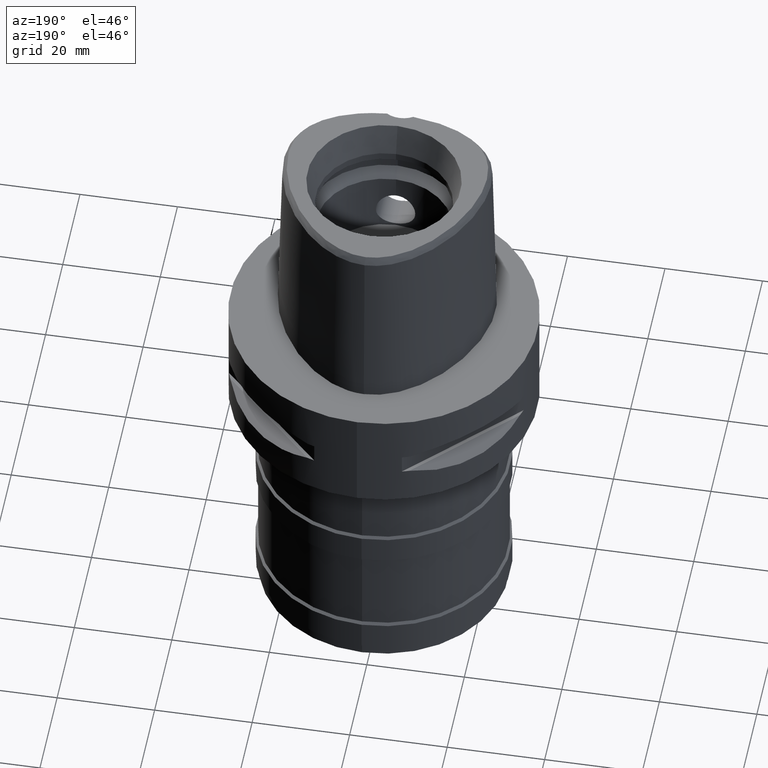
[diagram: clean part render]
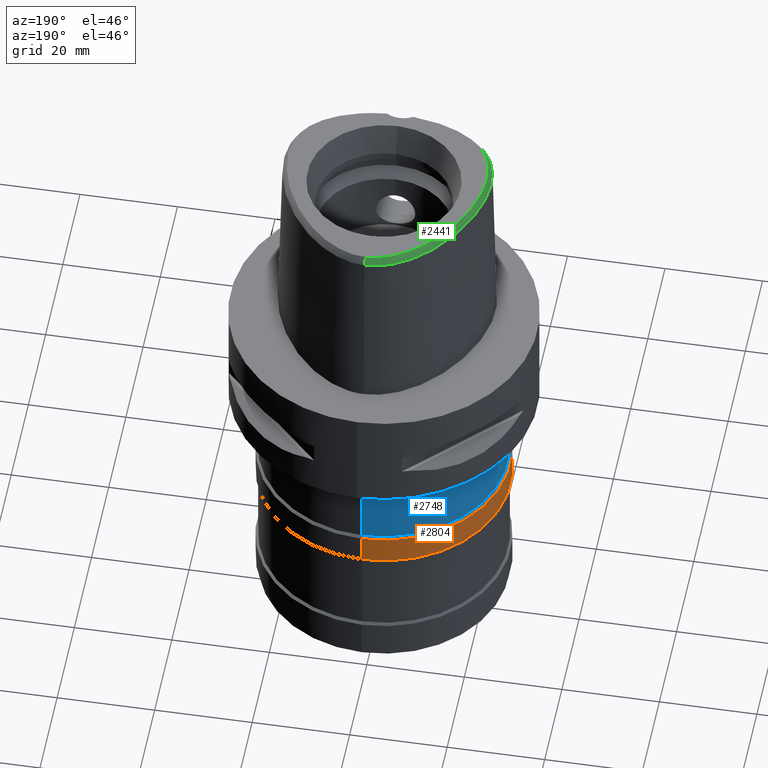
[diagram: same view with three faces highlighted in distinct colors, each labeled with its STEP entity id]
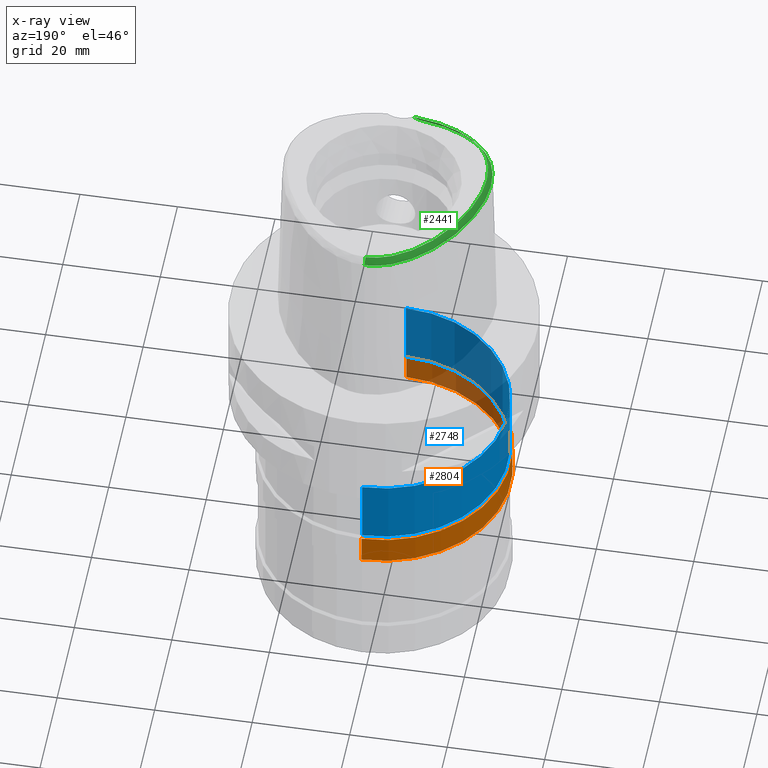
[diagram: x-ray of the same camera — body ghosted, the three highlighted faces saturated]
A machine part, auxiliary view with three faces highlighted in distinct colors.
The next image is the same camera in x-ray (body ghosted, the three faces saturated) — at least one of them is partly hidden behind the body in this view.
Their STEP definitions:

[orange] entity #2804 — the highlighted cylindrical surface (partial cylindrical patch) has radius 26 mm, axis along (0, 0, -1).
#606=CARTESIAN_POINT('',(0.E0,0.E0,-3.95E1));
#607=DIRECTION('',(0.E0,0.E0,-1.E0));
#608=DIRECTION('',(0.E0,-1.E0,0.E0));
#609=AXIS2_PLACEMENT_3D('',#606,#607,#608);
#637=DIRECTION('',(0.E0,0.E0,-1.E0));
#638=VECTOR('',#637,6.E0);
#639=CARTESIAN_POINT('',(0.E0,2.6E1,-3.95E1));
#640=LINE('',#639,#638);
#644=DIRECTION('',(0.E0,0.E0,-1.E0));
#645=VECTOR('',#644,6.E0);
#646=CARTESIAN_POINT('',(0.E0,-2.6E1,-3.95E1));
#647=LINE('',#646,#645);
#651=CARTESIAN_POINT('',(0.E0,0.E0,-4.55E1));
#652=DIRECTION('',(0.E0,0.E0,1.E0));
#653=DIRECTION('',(0.E0,1.E0,0.E0));
#654=AXIS2_PLACEMENT_3D('',#651,#652,#653);
#1790=CARTESIAN_POINT('',(0.E0,2.6E1,-3.95E1));
#1791=VERTEX_POINT('',#1790);
#1792=CARTESIAN_POINT('',(0.E0,-2.6E1,-3.95E1));
#1793=VERTEX_POINT('',#1792);
#1794=CARTESIAN_POINT('',(0.E0,2.6E1,-4.55E1));
#1795=VERTEX_POINT('',#1794);
#1796=CARTESIAN_POINT('',(0.E0,-2.6E1,-4.55E1));
#1797=VERTEX_POINT('',#1796);
#2792=CARTESIAN_POINT('',(0.E0,1.273632671113E-14,4.E0));
#2793=DIRECTION('',(0.E0,0.E0,-1.E0));
#2794=DIRECTION('',(0.E0,-1.E0,0.E0));
#2795=AXIS2_PLACEMENT_3D('',#2792,#2793,#2794);
#2796=CYLINDRICAL_SURFACE('',#2795,2.6E1);
#2797=ORIENTED_EDGE('',*,*,#2782,.F.);
#2798=ORIENTED_EDGE('',*,*,#2759,.F.);
#2799=ORIENTED_EDGE('',*,*,#2786,.T.);
#2801=ORIENTED_EDGE('',*,*,#2800,.F.);
#2802=EDGE_LOOP('',(#2797,#2798,#2799,#2801));
#2803=FACE_OUTER_BOUND('',#2802,.F.);
#610=CIRCLE('',#609,2.6E1);
#655=CIRCLE('',#654,2.6E1);
#2759=EDGE_CURVE('',#1793,#1791,#610,.T.);
#2782=EDGE_CURVE('',#1791,#1795,#640,.T.);
#2786=EDGE_CURVE('',#1793,#1797,#647,.T.);
#2800=EDGE_CURVE('',#1795,#1797,#655,.T.);
#2804=ADVANCED_FACE('',(#2803),#2796,.T.);

[blue] entity #2748 — the highlighted cylindrical surface (partial cylindrical patch) has radius 25.5 mm, axis along (0, 0, -1).
#554=CARTESIAN_POINT('',(0.E0,0.E0,-2.5E1));
#555=DIRECTION('',(0.E0,0.E0,-1.E0));
#556=DIRECTION('',(0.E0,-1.E0,0.E0));
#557=AXIS2_PLACEMENT_3D('',#554,#555,#556);
#577=DIRECTION('',(0.E0,0.E0,-1.E0));
#578=VECTOR('',#577,1.4E1);
#579=CARTESIAN_POINT('',(0.E0,2.55E1,-2.5E1));
#580=LINE('',#579,#578);
#584=DIRECTION('',(0.E0,0.E0,-1.E0));
#585=VECTOR('',#584,1.4E1);
#586=CARTESIAN_POINT('',(0.E0,-2.55E1,-2.5E1));
#587=LINE('',#586,#585);
#591=CARTESIAN_POINT('',(0.E0,0.E0,-3.9E1));
#592=DIRECTION('',(0.E0,0.E0,1.E0));
#593=DIRECTION('',(0.E0,1.E0,0.E0));
#594=AXIS2_PLACEMENT_3D('',#591,#592,#593);
#1782=CARTESIAN_POINT('',(0.E0,2.55E1,-2.5E1));
#1783=VERTEX_POINT('',#1782);
#1784=CARTESIAN_POINT('',(0.E0,-2.55E1,-2.5E1));
#1785=VERTEX_POINT('',#1784);
#1786=CARTESIAN_POINT('',(0.E0,2.55E1,-3.9E1));
#1787=VERTEX_POINT('',#1786);
#1788=CARTESIAN_POINT('',(0.E0,-2.55E1,-3.9E1));
#1789=VERTEX_POINT('',#1788);
#2736=CARTESIAN_POINT('',(0.E0,1.273632671113E-14,4.E0));
#2737=DIRECTION('',(0.E0,0.E0,-1.E0));
#2738=DIRECTION('',(0.E0,-1.E0,0.E0));
#2739=AXIS2_PLACEMENT_3D('',#2736,#2737,#2738);
#2740=CYLINDRICAL_SURFACE('',#2739,2.55E1);
#2741=ORIENTED_EDGE('',*,*,#2726,.F.);
#2742=ORIENTED_EDGE('',*,*,#2703,.F.);
#2743=ORIENTED_EDGE('',*,*,#2730,.T.);
#2745=ORIENTED_EDGE('',*,*,#2744,.F.);
#2746=EDGE_LOOP('',(#2741,#2742,#2743,#2745));
#2747=FACE_OUTER_BOUND('',#2746,.F.);
#558=CIRCLE('',#557,2.55E1);
#595=CIRCLE('',#594,2.55E1);
#2703=EDGE_CURVE('',#1785,#1783,#558,.T.);
#2726=EDGE_CURVE('',#1783,#1787,#580,.T.);
#2730=EDGE_CURVE('',#1785,#1789,#587,.T.);
#2744=EDGE_CURVE('',#1787,#1789,#595,.T.);
#2748=ADVANCED_FACE('',(#2747),#2740,.T.);

[green] entity #2441 — the highlighted face is a freeform B-spline surface patch.
#34=CARTESIAN_POINT('',(-2.682279906005E0,-1.878035848610E1,3.8E1));
#35=CARTESIAN_POINT('',(-3.538138898666E0,-1.871185921911E1,3.8E1));
#36=CARTESIAN_POINT('',(-5.161203320606E0,-1.851655131087E1,3.8E1));
#37=CARTESIAN_POINT('',(-7.383646039843E0,-1.807609425441E1,3.8E1));
#38=CARTESIAN_POINT('',(-9.245565819739E0,-1.756381719866E1,3.8E1));
#39=CARTESIAN_POINT('',(-1.087948524056E1,-1.699337526609E1,3.8E1));
#40=CARTESIAN_POINT('',(-1.236042266234E1,-1.635663583162E1,3.8E1));
#41=CARTESIAN_POINT('',(-1.370919697903E1,-1.565459330701E1,3.8E1));
#42=CARTESIAN_POINT('',(-1.494145493563E1,-1.488333501721E1,3.8E1));
#43=CARTESIAN_POINT('',(-1.605085868935E1,-1.404613411442E1,3.8E1));
#44=CARTESIAN_POINT('',(-1.699857053540E1,-1.318099565040E1,3.8E1));
#45=CARTESIAN_POINT('',(-1.779219335656E1,-1.230269452101E1,3.8E1));
#46=CARTESIAN_POINT('',(-1.844622510174E1,-1.141805018926E1,3.8E1));
#47=CARTESIAN_POINT('',(-1.898413806545E1,-1.051429032985E1,3.8E1));
#48=CARTESIAN_POINT('',(-1.944141393480E1,-9.534548821847E0,3.8E1));
#49=CARTESIAN_POINT('',(-1.982659517375E1,-8.438771124532E0,3.8E1));
#50=CARTESIAN_POINT('',(-2.012602041992E1,-7.224399230393E0,3.8E1));
#51=CARTESIAN_POINT('',(-2.032817845779E1,-5.858727027352E0,3.8E1));
#52=CARTESIAN_POINT('',(-2.040991911447E1,-4.415383731363E0,3.8E1));
#53=CARTESIAN_POINT('',(-2.037361866679E1,-2.920331541631E0,3.8E1));
#54=CARTESIAN_POINT('',(-2.021691361700E1,-1.343459266016E0,3.8E1));
#55=CARTESIAN_POINT('',(-1.993050485903E1,3.261021456637E-1,3.8E1));
#56=CARTESIAN_POINT('',(-1.948908156132E1,2.144729624293E0,3.8E1));
#57=CARTESIAN_POINT('',(-1.883589821205E1,4.198257946447E0,3.8E1));
#58=CARTESIAN_POINT('',(-1.791389361034E1,6.477697110012E0,3.8E1));
#59=CARTESIAN_POINT('',(-1.678620492849E1,8.743535723564E0,3.8E1));
#60=CARTESIAN_POINT('',(-1.548413481335E1,1.093142261844E1,3.8E1));
#61=CARTESIAN_POINT('',(-1.403007387372E1,1.299919690681E1,3.8E1));
#62=CARTESIAN_POINT('',(-1.251784062020E1,1.482885475427E1,3.8E1));
#63=CARTESIAN_POINT('',(-1.109840245029E1,1.630655165738E1,3.8E1));
#64=CARTESIAN_POINT('',(-9.769356295213E0,1.751241284622E1,3.8E1));
#65=CARTESIAN_POINT('',(-8.477054561992E0,1.853237193390E1,3.8E1));
#66=CARTESIAN_POINT('',(-7.194290653529E0,1.940284493847E1,3.8E1));
#67=CARTESIAN_POINT('',(-5.908379215228E0,2.013756676757E1,3.8E1));
#68=CARTESIAN_POINT('',(-4.624239447625E0,2.073413564342E1,3.8E1));
#69=CARTESIAN_POINT('',(-3.373008380803E0,2.118162768753E1,3.8E1));
#70=CARTESIAN_POINT('',(-2.190680208037E0,2.148085805084E1,3.8E1));
#71=CARTESIAN_POINT('',(-1.074206510512E0,2.165063776876E1,3.8E1));
#72=CARTESIAN_POINT('',(-3.530569938829E-1,2.168728795389E1,3.8E1));
#73=CARTESIAN_POINT('',(-3.470663397159E-11,2.168728795390E1,3.8E1));
#192=CARTESIAN_POINT('',(-2.682279906005E0,-1.878035848610E1,3.8E1));
#193=CARTESIAN_POINT('',(-2.798065052355E0,-1.885395909185E1,3.786041491478E1));
#194=CARTESIAN_POINT('',(-3.023477473225E0,-1.901066462466E1,3.756421565544E1));
#195=CARTESIAN_POINT('',(-3.341021458947E0,-1.927242562307E1,3.707342157743E1));
#196=CARTESIAN_POINT('',(-3.541198244821E0,-1.946733575692E1,3.671117624302E1));
#197=CARTESIAN_POINT('',(-3.637738201364E0,-1.956971413237E1,3.652186244848E1));
#202=CARTESIAN_POINT('',(-3.637738201364E0,-1.956971413237E1,3.652186244848E1));
#203=CARTESIAN_POINT('',(-4.482080756639E0,-1.947975233488E1,3.652183696292E1));
#204=CARTESIAN_POINT('',(-6.091575885222E0,-1.924386461520E1,3.652187735378E1));
#205=CARTESIAN_POINT('',(-8.251110161136E0,-1.876093954570E1,3.652186168057E1));
#206=CARTESIAN_POINT('',(-1.008741106526E1,-1.821096664943E1,3.652186231322E1));
#207=CARTESIAN_POINT('',(-1.171697854256E1,-1.760000404372E1,3.652186801634E1));
#208=CARTESIAN_POINT('',(-1.321066738284E1,-1.691544328128E1,3.652186473814E1));
#209=CARTESIAN_POINT('',(-1.458026256804E1,-1.615821971952E1,3.652186641566E1));
#210=CARTESIAN_POINT('',(-1.584155445266E1,-1.531878280521E1,3.652187387645E1));
#211=CARTESIAN_POINT('',(-1.695001538210E1,-1.442830593419E1,3.652186201807E1));
#212=CARTESIAN_POINT('',(-1.788749276034E1,-1.352033371331E1,3.652187701086E1));
#213=CARTESIAN_POINT('',(-1.867465080572E1,-1.259904540790E1,3.652184989340E1));
#214=CARTESIAN_POINT('',(-1.933148178922E1,-1.166144491284E1,3.652190174085E1));
#215=CARTESIAN_POINT('',(-1.987974375950E1,-1.068669931517E1,3.652186453692E1));
#216=CARTESIAN_POINT('',(-2.034528282873E1,-9.629275152308E0,3.652186376984E1));
#217=CARTESIAN_POINT('',(-2.073184304512E1,-8.458091180283E0,3.652187130549E1));
#218=CARTESIAN_POINT('',(-2.102749140180E1,-7.166917853514E0,3.652186453100E1));
#219=CARTESIAN_POINT('',(-2.122019618132E1,-5.726844113481E0,3.652186984028E1));
#220=CARTESIAN_POINT('',(-2.128786920883E1,-4.192580775390E0,3.652186542347E1));
#221=CARTESIAN_POINT('',(-2.123051976017E1,-2.615897806160E0,3.652186689125E1));
#222=CARTESIAN_POINT('',(-2.104690491538E1,-9.604989392906E-1,
3.652186761155E1));
#223=CARTESIAN_POINT('',(-2.072891796055E1,7.805453250436E-1,3.652186356508E1));
#224=CARTESIAN_POINT('',(-2.024392292808E1,2.692456656753E0,3.652186342544E1));
#225=CARTESIAN_POINT('',(-1.952818397320E1,4.852698323363E0,3.652186783233E1));
#226=CARTESIAN_POINT('',(-1.856099364074E1,7.165657232193E0,3.652185955666E1));
#227=CARTESIAN_POINT('',(-1.739108385652E1,9.458399294466E0,3.652185019578E1));
#228=CARTESIAN_POINT('',(-1.605024990220E1,1.166374608572E1,3.652187580320E1));
#229=CARTESIAN_POINT('',(-1.456866794961E1,1.373334607E1,3.652185714062E1));
#230=CARTESIAN_POINT('',(-1.303357933268E1,1.556413280638E1,3.652187307182E1));
#231=CARTESIAN_POINT('',(-1.157694554328E1,1.706135417574E1,3.652185877101E1));
#232=CARTESIAN_POINT('',(-1.020702965994E1,1.828823466588E1,3.652186904410E1));
#233=CARTESIAN_POINT('',(-8.864270975084E0,1.933340762525E1,3.652186774317E1));
#234=CARTESIAN_POINT('',(-7.525483024060E0,2.022787651606E1,3.652186754313E1));
#235=CARTESIAN_POINT('',(-6.168522291936E0,2.098854034443E1,3.652186518810E1));
#236=CARTESIAN_POINT('',(-4.817038167324E0,2.160077280384E1,3.652187113119E1));
#237=CARTESIAN_POINT('',(-3.513751301231E0,2.205290950638E1,3.652186606390E1));
#238=CARTESIAN_POINT('',(-2.288670488442E0,2.235376995572E1,3.652188194218E1));
#239=CARTESIAN_POINT('',(-1.113721825378E0,2.252586267621E1,3.652177529396E1));
#240=CARTESIAN_POINT('',(-3.724252106056E-1,2.256201468012E1,3.652186680743E1));
#241=CARTESIAN_POINT('',(-1.574539081985E-11,2.256201468012E1,
3.652186680744E1));
#246=DIRECTION('',(-1.103961658257E-11,-5.092834681090E-1,8.605988316927E-1));
#247=VECTOR('',#246,1.717563559379E0);
#248=CARTESIAN_POINT('',(-1.574539081985E-11,2.256201468012E1,
3.652186680744E1));
#249=LINE('',#248,#247);
#253=CARTESIAN_POINT('',(-3.637738201364E0,-1.956971413237E1,3.652186244848E1));
#1693=CARTESIAN_POINT('',(-2.682279906007E0,-1.878035848610E1,3.8E1));
#1695=VERTEX_POINT('',#1693);
#1698=VERTEX_POINT('',#73);
#1709=VERTEX_POINT('',#253);
#1710=CARTESIAN_POINT('',(-1.574539081985E-11,2.256201468012E1,
3.652186680744E1));
#1711=VERTEX_POINT('',#1710);
#2185=CARTESIAN_POINT('',(5.895442747757E-1,2.158066101548E1,3.815356328493E1));
#2186=CARTESIAN_POINT('',(6.090770106303E-1,2.193227159456E1,3.755845971467E1));
#2187=CARTESIAN_POINT('',(6.286097464848E-1,2.228388217365E1,3.696335614441E1));
#2188=CARTESIAN_POINT('',(6.481424823394E-1,2.263549275274E1,3.636825257415E1));
#2189=CARTESIAN_POINT('',(3.879599447570E-1,2.159108188501E1,3.815356323993E1));
#2190=CARTESIAN_POINT('',(4.010450795277E-1,2.194306631027E1,3.755845984406E1));
#2191=CARTESIAN_POINT('',(4.141302142985E-1,2.229505073554E1,3.696335644819E1));
#2192=CARTESIAN_POINT('',(4.272153490692E-1,2.264703516080E1,3.636825305232E1));
#2193=CARTESIAN_POINT('',(-2.536168205910E-2,2.160238568348E1,
3.815356320890E1));
#2194=CARTESIAN_POINT('',(-2.612787192693E-2,2.195476159866E1,
3.755845993328E1));
#2195=CARTESIAN_POINT('',(-2.689406179477E-2,2.230713751385E1,
3.696335665765E1));
#2196=CARTESIAN_POINT('',(-2.766025166260E-2,2.265951342903E1,
3.636825338203E1));
#2197=CARTESIAN_POINT('',(-6.442012905317E-1,2.158302703977E1,
3.815356326204E1));
#2198=CARTESIAN_POINT('',(-6.662816471515E-1,2.193473249768E1,
3.755845978048E1));
#2199=CARTESIAN_POINT('',(-6.883620037714E-1,2.228643795560E1,
3.696335629893E1));
#2200=CARTESIAN_POINT('',(-7.104423603912E-1,2.263814341351E1,
3.636825281737E1));
#2201=CARTESIAN_POINT('',(-1.312370270100E0,2.152076108178E1,3.815356329458E1));
#2202=CARTESIAN_POINT('',(-1.356177693161E0,2.187041923523E1,3.755845968693E1));
#2203=CARTESIAN_POINT('',(-1.399985116222E0,2.222007738868E1,3.696335607929E1));
#2204=CARTESIAN_POINT('',(-1.443792539283E0,2.256973554213E1,3.636825247164E1));
#2205=CARTESIAN_POINT('',(-2.000218362917E0,2.141344357340E1,3.815356324084E1));
#2206=CARTESIAN_POINT('',(-2.065349787298E0,2.175975854131E1,3.755845984144E1));
#2207=CARTESIAN_POINT('',(-2.130481211680E0,2.210607350922E1,3.696335644204E1));
#2208=CARTESIAN_POINT('',(-2.195612636061E0,2.245238847713E1,3.636825304265E1));
#2209=CARTESIAN_POINT('',(-2.713532717084E0,2.125740433941E1,3.815356318440E1));
#2210=CARTESIAN_POINT('',(-2.799430759116E0,2.159915408683E1,3.755846000372E1));
#2211=CARTESIAN_POINT('',(-2.885328801147E0,2.194090383424E1,3.696335682304E1));
#2212=CARTESIAN_POINT('',(-2.971226843178E0,2.228265358166E1,3.636825364236E1));
#2213=CARTESIAN_POINT('',(-3.453654929096E0,2.104838429952E1,3.815356319658E1));
#2214=CARTESIAN_POINT('',(-3.559691910844E0,2.138442410336E1,3.755845996870E1));
#2215=CARTESIAN_POINT('',(-3.665728892591E0,2.172046390720E1,3.696335674083E1));
#2216=CARTESIAN_POINT('',(-3.771765874339E0,2.205650371104E1,3.636825351295E1));
#2217=CARTESIAN_POINT('',(-4.222184122425E0,2.078163453923E1,3.815356324193E1));
#2218=CARTESIAN_POINT('',(-4.347646999291E0,2.111090740706E1,3.755845983830E1));
#2219=CARTESIAN_POINT('',(-4.473109876158E0,2.144018027488E1,3.696335643468E1));
#2220=CARTESIAN_POINT('',(-4.598572753024E0,2.176945314271E1,3.636825303106E1));
#2221=CARTESIAN_POINT('',(-5.021031499202E0,2.045148416937E1,3.815356319268E1));
#2222=CARTESIAN_POINT('',(-5.165149829193E0,2.077302124779E1,3.755845997991E1));
#2223=CARTESIAN_POINT('',(-5.309268159184E0,2.109455832621E1,3.696335676714E1));
#2224=CARTESIAN_POINT('',(-5.453386489175E0,2.141609540462E1,3.636825355437E1));
#2225=CARTESIAN_POINT('',(-5.851757726332E0,2.005160260351E1,3.815356317956E1));
#2226=CARTESIAN_POINT('',(-6.013690079238E0,2.036453834541E1,3.755846001765E1));
#2227=CARTESIAN_POINT('',(-6.175622432144E0,2.067747408731E1,3.696335685573E1));
#2228=CARTESIAN_POINT('',(-6.337554785050E0,2.099040982921E1,3.636825369381E1));
#2229=CARTESIAN_POINT('',(-6.713269257059E0,1.957621973449E1,3.815356323897E1));
#2230=CARTESIAN_POINT('',(-6.892170536098E0,1.987976563053E1,3.755845984679E1));
#2231=CARTESIAN_POINT('',(-7.071071815137E0,2.018331152658E1,3.696335645461E1));
#2232=CARTESIAN_POINT('',(-7.249973094176E0,2.048685742263E1,3.636825306242E1));
#2233=CARTESIAN_POINT('',(-7.604907472283E0,1.901879702246E1,3.815356323549E1));
#2234=CARTESIAN_POINT('',(-7.799894655973E0,1.931226008608E1,3.755845985680E1));
#2235=CARTESIAN_POINT('',(-7.994881839662E0,1.960572314970E1,3.696335647810E1));
#2236=CARTESIAN_POINT('',(-8.189869023352E0,1.989918621332E1,3.636825309940E1));
#2237=CARTESIAN_POINT('',(-8.523981374708E0,1.837360193993E1,3.815356328897E1));
#2238=CARTESIAN_POINT('',(-8.734174293181E0,1.865636515458E1,3.755845970308E1));
#2239=CARTESIAN_POINT('',(-8.944367211655E0,1.893912836923E1,3.696335611719E1));
#2240=CARTESIAN_POINT('',(-9.154560130128E0,1.922189158388E1,3.636825253130E1));
#2241=CARTESIAN_POINT('',(-9.466395240704E0,1.763552585190E1,3.815356309538E1));
#2242=CARTESIAN_POINT('',(-9.690937931881E0,1.790702567903E1,3.755846025967E1));
#2243=CARTESIAN_POINT('',(-9.915480623058E0,1.817852550616E1,3.696335742396E1));
#2244=CARTESIAN_POINT('',(-1.014002331424E1,1.845002533329E1,3.636825458824E1));
#2245=CARTESIAN_POINT('',(-1.042820751130E1,1.679928676523E1,3.815356286275E1));
#2246=CARTESIAN_POINT('',(-1.066621562084E1,1.705905487462E1,3.755846092857E1));
#2247=CARTESIAN_POINT('',(-1.090422373038E1,1.731882298402E1,3.696335899438E1));
#2248=CARTESIAN_POINT('',(-1.114223183992E1,1.757859109341E1,3.636825706020E1));
#2249=CARTESIAN_POINT('',(-1.140096452754E1,1.586352319156E1,3.815356288122E1));
#2250=CARTESIAN_POINT('',(-1.165160611453E1,1.611111684143E1,3.755846087544E1));
#2251=CARTESIAN_POINT('',(-1.190224770152E1,1.635871049129E1,3.696335886965E1));
#2252=CARTESIAN_POINT('',(-1.215288928851E1,1.660630414116E1,3.636825686386E1));
#2253=CARTESIAN_POINT('',(-1.237344139918E1,1.483064034076E1,3.815356315735E1));
#2254=CARTESIAN_POINT('',(-1.263590596440E1,1.506565833600E1,3.755846008151E1));
#2255=CARTESIAN_POINT('',(-1.289837052962E1,1.530067633123E1,3.696335700568E1));
#2256=CARTESIAN_POINT('',(-1.316083509484E1,1.553569432646E1,3.636825392984E1));
#2257=CARTESIAN_POINT('',(-1.333377338015E1,1.370538867294E1,3.815356328748E1));
#2258=CARTESIAN_POINT('',(-1.360730367985E1,1.392742450998E1,3.755845970733E1));
#2259=CARTESIAN_POINT('',(-1.388083397955E1,1.414946034701E1,3.696335612719E1));
#2260=CARTESIAN_POINT('',(-1.415436427925E1,1.437149618404E1,3.636825254704E1));
#2261=CARTESIAN_POINT('',(-1.427078367703E1,1.249376398647E1,3.815356317174E1));
#2262=CARTESIAN_POINT('',(-1.455461132560E1,1.270247097308E1,3.755846004012E1));
#2263=CARTESIAN_POINT('',(-1.483843897417E1,1.291117795968E1,3.696335690849E1));
#2264=CARTESIAN_POINT('',(-1.512226662274E1,1.311988494629E1,3.636825377686E1));
#2265=CARTESIAN_POINT('',(-1.517121241165E1,1.120685333672E1,3.815356314518E1));
#2266=CARTESIAN_POINT('',(-1.546462041452E1,1.140185933828E1,3.755846011651E1));
#2267=CARTESIAN_POINT('',(-1.575802841740E1,1.159686533984E1,3.696335708785E1));
#2268=CARTESIAN_POINT('',(-1.605143642028E1,1.179187134140E1,3.636825405918E1));
#2269=CARTESIAN_POINT('',(-1.602005545376E1,9.862053803365E0,3.815356323764E1));
#2270=CARTESIAN_POINT('',(-1.632234466310E1,1.004298649255E1,3.755845985065E1));
#2271=CARTESIAN_POINT('',(-1.662463387244E1,1.022391918173E1,3.696335646365E1));
#2272=CARTESIAN_POINT('',(-1.692692308177E1,1.040485187091E1,3.636825307665E1));
#2273=CARTESIAN_POINT('',(-1.680635459680E1,8.474873168098E0,3.815356320305E1));
#2274=CARTESIAN_POINT('',(-1.711686074836E1,8.641310551404E0,3.755845995009E1));
#2275=CARTESIAN_POINT('',(-1.742736689993E1,8.807747934709E0,3.696335669713E1));
#2276=CARTESIAN_POINT('',(-1.773787305149E1,8.974185318015E0,3.636825344417E1));
#2277=CARTESIAN_POINT('',(-1.752220458841E1,7.059661166659E0,3.815356314246E1));
#2278=CARTESIAN_POINT('',(-1.784023066066E1,7.211237146053E0,3.755846012431E1));
#2279=CARTESIAN_POINT('',(-1.815825673291E1,7.362813125448E0,3.696335710616E1));
#2280=CARTESIAN_POINT('',(-1.847628280515E1,7.514389104842E0,3.636825408802E1));
#2281=CARTESIAN_POINT('',(-1.815919541242E1,5.636065067889E0,3.815356320822E1));
#2282=CARTESIAN_POINT('',(-1.848407053048E1,5.772349648109E0,3.755845993524E1));
#2283=CARTESIAN_POINT('',(-1.880894564853E1,5.908634228329E0,3.696335666226E1));
#2284=CARTESIAN_POINT('',(-1.913382076659E1,6.044918808550E0,3.636825338928E1));
#2285=CARTESIAN_POINT('',(-1.871107534282E1,4.225150080325E0,3.815356329720E1));
#2286=CARTESIAN_POINT('',(-1.904211684528E1,4.345694548501E0,3.755845967937E1));
#2287=CARTESIAN_POINT('',(-1.937315834774E1,4.466239016677E0,3.696335606153E1));
#2288=CARTESIAN_POINT('',(-1.970419985019E1,4.586783484853E0,3.636825244370E1));
#2289=CARTESIAN_POINT('',(-1.917641015864E1,2.841651870481E0,3.815356304410E1));
#2290=CARTESIAN_POINT('',(-1.951292084790E1,2.945971112531E0,3.755846040714E1));
#2291=CARTESIAN_POINT('',(-1.984943153715E1,3.050290354581E0,3.696335777018E1));
#2292=CARTESIAN_POINT('',(-2.018594222641E1,3.154609596631E0,3.636825513322E1));
#2293=CARTESIAN_POINT('',(-1.955628480603E1,1.497641470875E0,3.815356283884E1));
#2294=CARTESIAN_POINT('',(-1.989752708809E1,1.585269398349E0,3.755846099729E1));
#2295=CARTESIAN_POINT('',(-2.023876937015E1,1.672897325824E0,3.696335915573E1));
#2296=CARTESIAN_POINT('',(-2.058001165220E1,1.760525253298E0,3.636825731417E1));
#2297=CARTESIAN_POINT('',(-1.985281076203E1,2.060799553928E-1,
3.815356290982E1));
#2298=CARTESIAN_POINT('',(-2.019801792427E1,2.765117294714E-1,
3.755846079324E1));
#2299=CARTESIAN_POINT('',(-2.054322508651E1,3.469435035499E-1,
3.696335867666E1));
#2300=CARTESIAN_POINT('',(-2.088843224875E1,4.173752776285E-1,
3.636825656008E1));
#2301=CARTESIAN_POINT('',(-2.007023816269E1,-1.023305864086E0,
3.815356319131E1));
#2302=CARTESIAN_POINT('',(-2.041859463843E1,-9.705720049152E-1,
3.755845998385E1));
#2303=CARTESIAN_POINT('',(-2.076695111416E1,-9.178381457439E-1,
3.696335677639E1));
#2304=CARTESIAN_POINT('',(-2.111530758990E1,-8.651042865726E-1,
3.636825356893E1));
#2305=CARTESIAN_POINT('',(-2.021450398881E1,-2.186283161539E0,
3.815356328081E1));
#2306=CARTESIAN_POINT('',(-2.056514182034E1,-2.151776475506E0,
3.755845972654E1));
#2307=CARTESIAN_POINT('',(-2.091577965187E1,-2.117269789472E0,
3.696335617228E1));
#2308=CARTESIAN_POINT('',(-2.126641748340E1,-2.082763103439E0,
3.636825261802E1));
#2309=CARTESIAN_POINT('',(-2.029218807441E1,-3.282432020365E0,
3.815356324264E1));
#2310=CARTESIAN_POINT('',(-2.064417020114E1,-3.266593028010E0,
3.755845983629E1));
#2311=CARTESIAN_POINT('',(-2.099615232786E1,-3.250754035654E0,
3.696335642994E1));
#2312=CARTESIAN_POINT('',(-2.134813445459E1,-3.234915043299E0,
3.636825302359E1));
#2313=CARTESIAN_POINT('',(-2.030968528678E1,-4.310569046298E0,
3.815356322362E1));
#2314=CARTESIAN_POINT('',(-2.066201570683E1,-4.313857466055E0,
3.755845989098E1));
#2315=CARTESIAN_POINT('',(-2.101434612688E1,-4.317145885812E0,
3.696335655833E1));
#2316=CARTESIAN_POINT('',(-2.136667654693E1,-4.320434305570E0,
3.636825322569E1));
#2317=CARTESIAN_POINT('',(-2.027325417719E1,-5.272588870948E0,
3.815356314582E1));
#2318=CARTESIAN_POINT('',(-2.062486896199E1,-5.295382819311E0,
3.755846011464E1));
#2319=CARTESIAN_POINT('',(-2.097648374679E1,-5.318176767674E0,
3.696335708345E1));
#2320=CARTESIAN_POINT('',(-2.132809853158E1,-5.340970716037E0,
3.636825405227E1));
#2321=CARTESIAN_POINT('',(-2.018872879013E1,-6.170922382463E0,
3.815356319626E1));
#2322=CARTESIAN_POINT('',(-2.053850170594E1,-6.213547580348E0,
3.755845996960E1));
#2323=CARTESIAN_POINT('',(-2.088827462176E1,-6.256172778234E0,
3.696335674294E1));
#2324=CARTESIAN_POINT('',(-2.123804753757E1,-6.298797976120E0,
3.636825351628E1));
#2325=CARTESIAN_POINT('',(-2.006142644904E1,-7.008041879090E0,
3.815356325671E1));
#2326=CARTESIAN_POINT('',(-2.040816686401E1,-7.070766572260E0,
3.755845979583E1));
#2327=CARTESIAN_POINT('',(-2.075490727899E1,-7.133491265429E0,
3.696335633494E1));
#2328=CARTESIAN_POINT('',(-2.110164769397E1,-7.196215958598E0,
3.636825287406E1));
#2329=CARTESIAN_POINT('',(-1.989582315813E1,-7.788487939216E0,
3.815356325152E1));
#2330=CARTESIAN_POINT('',(-2.023829006509E1,-7.871461784383E0,
3.755845981073E1));
#2331=CARTESIAN_POINT('',(-2.058075697204E1,-7.954435629550E0,
3.696335636995E1));
#2332=CARTESIAN_POINT('',(-2.092322387899E1,-8.037409474717E0,
3.636825292916E1));
#2333=CARTESIAN_POINT('',(-1.969568476336E1,-8.516497146073E0,
3.815356324181E1));
#2334=CARTESIAN_POINT('',(-2.003259292763E1,-8.619773256596E0,
3.755845983867E1));
#2335=CARTESIAN_POINT('',(-2.036950109190E1,-8.723049367119E0,
3.696335643554E1));
#2336=CARTESIAN_POINT('',(-2.070640925617E1,-8.826325477641E0,
3.636825303241E1));
#2337=CARTESIAN_POINT('',(-1.946403660646E1,-9.196295789817E0,
3.815356319624E1));
#2338=CARTESIAN_POINT('',(-1.979406718123E1,-9.319817057638E0,
3.755845996969E1));
#2339=CARTESIAN_POINT('',(-2.012409775600E1,-9.443338325460E0,
3.696335674313E1));
#2340=CARTESIAN_POINT('',(-2.045412833078E1,-9.566859593281E0,
3.636825351658E1));
#2341=CARTESIAN_POINT('',(-1.920287278963E1,-9.832635732423E0,
3.815356322193E1));
#2342=CARTESIAN_POINT('',(-1.952469416757E1,-9.976202825521E0,
3.755845989580E1));
#2343=CARTESIAN_POINT('',(-1.984651554550E1,-1.011976991862E1,
3.696335656966E1));
#2344=CARTESIAN_POINT('',(-2.016833692344E1,-1.026333701172E1,
3.636825324353E1));
#2345=CARTESIAN_POINT('',(-1.891462301751E1,-1.042755089088E1,
3.815356326648E1));
#2346=CARTESIAN_POINT('',(-1.922691698876E1,-1.059082709312E1,
3.755845976773E1));
#2347=CARTESIAN_POINT('',(-1.953921096E1,-1.075410329535E1,3.696335626899E1));
#2348=CARTESIAN_POINT('',(-1.985150493125E1,-1.091737949759E1,
3.636825277024E1));
#2349=CARTESIAN_POINT('',(-1.859832722529E1,-1.098846559693E1,
3.815356322103E1));
#2350=CARTESIAN_POINT('',(-1.889966738391E1,-1.117117207158E1,
3.755845989839E1));
#2351=CARTESIAN_POINT('',(-1.920100754254E1,-1.135387854622E1,
3.696335657575E1));
#2352=CARTESIAN_POINT('',(-1.950234770117E1,-1.153658502086E1,
3.636825325311E1));
#2353=CARTESIAN_POINT('',(-1.824281545643E1,-1.153601626307E1,
3.815356326640E1));
#2354=CARTESIAN_POINT('',(-1.853217113314E1,-1.173715076971E1,
3.755845976794E1));
#2355=CARTESIAN_POINT('',(-1.882152680985E1,-1.193828527635E1,
3.696335626948E1));
#2356=CARTESIAN_POINT('',(-1.911088248656E1,-1.213941978299E1,
3.636825277102E1));
#2357=CARTESIAN_POINT('',(-1.783873093927E1,-1.208137597267E1,
3.815356318228E1));
#2358=CARTESIAN_POINT('',(-1.811513344048E1,-1.229996336639E1,
3.755846000981E1));
#2359=CARTESIAN_POINT('',(-1.839153594168E1,-1.251855076010E1,
3.696335683735E1));
#2360=CARTESIAN_POINT('',(-1.866793844289E1,-1.273713815382E1,
3.636825366488E1));
#2361=CARTESIAN_POINT('',(-1.738344252638E1,-1.262301079890E1,
3.815356323411E1));
#2362=CARTESIAN_POINT('',(-1.764601155039E1,-1.285802586293E1,
3.755845986079E1));
#2363=CARTESIAN_POINT('',(-1.790858057441E1,-1.309304092697E1,
3.696335648746E1));
#2364=CARTESIAN_POINT('',(-1.817114959842E1,-1.332805599100E1,
3.636825311413E1));
#2365=CARTESIAN_POINT('',(-1.687239012634E1,-1.316133184509E1,
3.815356324791E1));
#2366=CARTESIAN_POINT('',(-1.712037478429E1,-1.341167851719E1,
3.755845982111E1));
#2367=CARTESIAN_POINT('',(-1.736835944224E1,-1.366202518929E1,
3.696335639431E1));
#2368=CARTESIAN_POINT('',(-1.761634410019E1,-1.391237186140E1,
3.636825296751E1));
#2369=CARTESIAN_POINT('',(-1.630025966960E1,-1.369632060773E1,
3.815356325753E1));
#2370=CARTESIAN_POINT('',(-1.653302676979E1,-1.396086629425E1,
3.755845979346E1));
#2371=CARTESIAN_POINT('',(-1.676579386997E1,-1.422541198077E1,
3.696335632938E1));
#2372=CARTESIAN_POINT('',(-1.699856097016E1,-1.448995766729E1,
3.636825286531E1));
#2373=CARTESIAN_POINT('',(-1.566188728538E1,-1.422679846294E1,
3.815356322604E1));
#2374=CARTESIAN_POINT('',(-1.587891113793E1,-1.450439598823E1,
3.755845988398E1));
#2375=CARTESIAN_POINT('',(-1.609593499048E1,-1.478199351352E1,
3.696335654193E1));
#2376=CARTESIAN_POINT('',(-1.631295884304E1,-1.505959103881E1,
3.636825319987E1));
#2377=CARTESIAN_POINT('',(-1.495112008992E1,-1.475147978765E1,
3.815356314846E1));
#2378=CARTESIAN_POINT('',(-1.515199943531E1,-1.504096506583E1,
3.755846010706E1));
#2379=CARTESIAN_POINT('',(-1.535287878070E1,-1.533045034400E1,
3.696335706566E1));
#2380=CARTESIAN_POINT('',(-1.555375812609E1,-1.561993562217E1,
3.636825402426E1));
#2381=CARTESIAN_POINT('',(-1.416242517061E1,-1.526771945521E1,
3.815356319310E1));
#2382=CARTESIAN_POINT('',(-1.434685387166E1,-1.556794482113E1,
3.755845997871E1));
#2383=CARTESIAN_POINT('',(-1.453128257271E1,-1.586817018706E1,
3.696335676433E1));
#2384=CARTESIAN_POINT('',(-1.471571127376E1,-1.616839555298E1,
3.636825354994E1));
#2385=CARTESIAN_POINT('',(-1.329129340311E1,-1.577152872657E1,
3.815356324554E1));
#2386=CARTESIAN_POINT('',(-1.345903343852E1,-1.608137917900E1,
3.755845982794E1));
#2387=CARTESIAN_POINT('',(-1.362677347393E1,-1.639122963143E1,
3.696335641034E1));
#2388=CARTESIAN_POINT('',(-1.379451350934E1,-1.670108008386E1,
3.636825299274E1));
#2389=CARTESIAN_POINT('',(-1.233237979248E1,-1.625888947217E1,
3.815356325678E1));
#2390=CARTESIAN_POINT('',(-1.248331002651E1,-1.657725888135E1,
3.755845979560E1));
#2391=CARTESIAN_POINT('',(-1.263424026053E1,-1.689562829054E1,
3.696335633442E1));
#2392=CARTESIAN_POINT('',(-1.278517049456E1,-1.721399769972E1,
3.636825287324E1));
#2393=CARTESIAN_POINT('',(-1.128332305199E1,-1.672388883870E1,
3.815356326333E1));
#2394=CARTESIAN_POINT('',(-1.141735327090E1,-1.704972683450E1,
3.755845977677E1));
#2395=CARTESIAN_POINT('',(-1.155138348982E1,-1.737556483031E1,
3.696335629021E1));
#2396=CARTESIAN_POINT('',(-1.168541370874E1,-1.770140282611E1,
3.636825280365E1));
#2397=CARTESIAN_POINT('',(-1.014113896953E1,-1.716069818578E1,
3.815356299580E1));
#2398=CARTESIAN_POINT('',(-1.025825734618E1,-1.749298313395E1,
3.755846054602E1));
#2399=CARTESIAN_POINT('',(-1.037537572282E1,-1.782526808212E1,
3.696335809625E1));
#2400=CARTESIAN_POINT('',(-1.049249409947E1,-1.815755303030E1,
3.636825564648E1));
#2401=CARTESIAN_POINT('',(-8.904231541628E0,-1.756284669923E1,
3.815356284630E1));
#2402=CARTESIAN_POINT('',(-9.004464137644E0,-1.790060334050E1,
3.755846097587E1));
#2403=CARTESIAN_POINT('',(-9.104696733660E0,-1.823835998178E1,
3.696335910544E1));
#2404=CARTESIAN_POINT('',(-9.204929329675E0,-1.857611662305E1,
3.636825723501E1));
#2405=CARTESIAN_POINT('',(-7.577851884129E0,-1.792177848412E1,
3.815356296057E1));
#2406=CARTESIAN_POINT('',(-7.661242979053E0,-1.826407765348E1,
3.755846064732E1));
#2407=CARTESIAN_POINT('',(-7.744634073978E0,-1.860637682283E1,
3.696335833407E1));
#2408=CARTESIAN_POINT('',(-7.828025168902E0,-1.894867599219E1,
3.636825602083E1));
#2409=CARTESIAN_POINT('',(-6.171190017066E0,-1.822903470633E1,
3.815356325606E1));
#2410=CARTESIAN_POINT('',(-6.237791592211E0,-1.857498909981E1,
3.755845979768E1));
#2411=CARTESIAN_POINT('',(-6.304393167355E0,-1.892094349329E1,
3.696335633930E1));
#2412=CARTESIAN_POINT('',(-6.370994742500E0,-1.926689788677E1,
3.636825288092E1));
#2413=CARTESIAN_POINT('',(-4.694129662605E0,-1.847722325523E1,
3.815356323644E1));
#2414=CARTESIAN_POINT('',(-4.743984457479E0,-1.882598179347E1,
3.755845985411E1));
#2415=CARTESIAN_POINT('',(-4.793839252352E0,-1.917474033172E1,
3.696335647177E1));
#2416=CARTESIAN_POINT('',(-4.843694047226E0,-1.952349886997E1,
3.636825308943E1));
#2417=CARTESIAN_POINT('',(-3.513339609728E0,-1.861772775945E1,
3.815356315594E1));
#2418=CARTESIAN_POINT('',(-3.550376728680E0,-1.896800584791E1,
3.755846008555E1));
#2419=CARTESIAN_POINT('',(-3.587413847632E0,-1.931828393637E1,
3.696335701516E1));
#2420=CARTESIAN_POINT('',(-3.624450966584E0,-1.966856202483E1,
3.636825394478E1));
#2421=CARTESIAN_POINT('',(-2.631500402941E0,-1.869473499248E1,
3.815356314541E1));
#2422=CARTESIAN_POINT('',(-2.659133667390E0,-1.904583420108E1,
3.755846011582E1));
#2423=CARTESIAN_POINT('',(-2.686766931838E0,-1.939693340967E1,
3.696335708622E1));
#2424=CARTESIAN_POINT('',(-2.714400196286E0,-1.974803261827E1,
3.636825405662E1));
#2425=CARTESIAN_POINT('',(-2.267591036237E0,-1.872049483177E1,
3.815356315026E1));
#2426=CARTESIAN_POINT('',(-2.291373722109E0,-1.907186647532E1,
3.755846010189E1));
#2427=CARTESIAN_POINT('',(-2.315156407981E0,-1.942323811886E1,
3.696335705352E1));
#2428=CARTESIAN_POINT('',(-2.338939093852E0,-1.977460976240E1,
3.636825400515E1));
#2429=CARTESIAN_POINT('',(-2.063028521981E0,-1.873308334341E1,
3.815356315527E1));
#2430=CARTESIAN_POINT('',(-2.084653671257E0,-1.908458773460E1,
3.755846008749E1));
#2431=CARTESIAN_POINT('',(-2.106278820533E0,-1.943609212578E1,
3.696335701971E1));
#2432=CARTESIAN_POINT('',(-2.127903969808E0,-1.978759651696E1,
3.636825395192E1));
#2433=B_SPLINE_SURFACE_WITH_KNOTS('',3,3,((#2185,#2186,#2187,#2188),(#2189,
#2190,#2191,#2192),(#2193,#2194,#2195,#2196),(#2197,#2198,#2199,#2200),(#2201,
#2202,#2203,#2204),(#2205,#2206,#2207,#2208),(#2209,#2210,#2211,#2212),(#2213,
#2214,#2215,#2216),(#2217,#2218,#2219,#2220),(#2221,#2222,#2223,#2224),(#2225,
#2226,#2227,#2228),(#2229,#2230,#2231,#2232),(#2233,#2234,#2235,#2236),(#2237,
#2238,#2239,#2240),(#2241,#2242,#2243,#2244),(#2245,#2246,#2247,#2248),(#2249,
#2250,#2251,#2252),(#2253,#2254,#2255,#2256),(#2257,#2258,#2259,#2260),(#2261,
#2262,#2263,#2264),(#2265,#2266,#2267,#2268),(#2269,#2270,#2271,#2272),(#2273,
#2274,#2275,#2276),(#2277,#2278,#2279,#2280),(#2281,#2282,#2283,#2284),(#2285,
#2286,#2287,#2288),(#2289,#2290,#2291,#2292),(#2293,#2294,#2295,#2296),(#2297,
#2298,#2299,#2300),(#2301,#2302,#2303,#2304),(#2305,#2306,#2307,#2308),(#2309,
#2310,#2311,#2312),(#2313,#2314,#2315,#2316),(#2317,#2318,#2319,#2320),(#2321,
#2322,#2323,#2324),(#2325,#2326,#2327,#2328),(#2329,#2330,#2331,#2332),(#2333,
#2334,#2335,#2336),(#2337,#2338,#2339,#2340),(#2341,#2342,#2343,#2344),(#2345,
#2346,#2347,#2348),(#2349,#2350,#2351,#2352),(#2353,#2354,#2355,#2356),(#2357,
#2358,#2359,#2360),(#2361,#2362,#2363,#2364),(#2365,#2366,#2367,#2368),(#2369,
#2370,#2371,#2372),(#2373,#2374,#2375,#2376),(#2377,#2378,#2379,#2380),(#2381,
#2382,#2383,#2384),(#2385,#2386,#2387,#2388),(#2389,#2390,#2391,#2392),(#2393,
#2394,#2395,#2396),(#2397,#2398,#2399,#2400),(#2401,#2402,#2403,#2404),(#2405,
#2406,#2407,#2408),(#2409,#2410,#2411,#2412),(#2413,#2414,#2415,#2416),(#2417,
#2418,#2419,#2420),(#2421,#2422,#2423,#2424),(#2425,#2426,#2427,#2428),(#2429,
#2430,#2431,#2432)),.UNSPECIFIED.,.F.,.F.,.F.,(4,1,1,1,1,1,1,1,1,1,1,1,1,1,1,1,
1,1,1,1,1,1,1,1,1,1,1,1,1,1,1,1,1,1,1,1,1,1,1,1,1,1,1,1,1,1,1,1,1,1,1,1,1,1,1,1,
1,1,1,4),(4,4),(-1.585043674195E-2,0.E0,1.776034072166E-2,3.552068144392E-2,
5.328102216617E-2,7.104136288843E-2,8.880170361069E-2,1.065620443330E-1,
1.243223850552E-1,1.420827257775E-1,1.598430664997E-1,1.776034072219E-1,
1.953637479442E-1,2.131240886664E-1,2.308844293888E-1,2.486447701110E-1,
2.664051108333E-1,2.841654515555E-1,3.019257922778E-1,3.19686133E-1,
3.374464737223E-1,3.552068144445E-1,3.729671551668E-1,3.907274958891E-1,
4.084878366113E-1,4.262481773336E-1,4.440085180558E-1,4.617688587781E-1,
4.795291995003E-1,4.972895402226E-1,5.150498809448E-1,5.328102216671E-1,
5.505705623894E-1,5.683309031116E-1,5.860912438339E-1,6.038515845561E-1,
6.216119252784E-1,6.393722660006E-1,6.571326067229E-1,6.748929474452E-1,
6.926532881674E-1,7.104136288897E-1,7.281739696119E-1,7.459343103342E-1,
7.636946510564E-1,7.814549917787E-1,7.992153325009E-1,8.169756732232E-1,
8.347360139455E-1,8.524963546678E-1,8.702566953900E-1,8.880170361122E-1,
9.057773768345E-1,9.235377175567E-1,9.412980582790E-1,9.590583990012E-1,
9.768187397236E-1,9.945790804458E-1,1.E0,1.006922200500E0),(-8.066292915195E-2,
1.080690774261E0),.UNSPECIFIED.);
#2434=ORIENTED_EDGE('',*,*,#1922,.T.);
#2436=ORIENTED_EDGE('',*,*,#2435,.T.);
#2437=ORIENTED_EDGE('',*,*,#2178,.T.);
#2438=ORIENTED_EDGE('',*,*,#1892,.F.);
#2439=EDGE_LOOP('',(#2434,#2436,#2437,#2438));
#2440=FACE_OUTER_BOUND('',#2439,.F.);
#74=B_SPLINE_CURVE_WITH_KNOTS('',3,(#34,#35,#36,#37,#38,#39,#40,#41,#42,#43,#44,
#45,#46,#47,#48,#49,#50,#51,#52,#53,#54,#55,#56,#57,#58,#59,#60,#61,#62,#63,#64,
#65,#66,#67,#68,#69,#70,#71,#72,#73),.UNSPECIFIED.,.F.,.F.,(4,1,1,1,1,1,1,1,1,1,
1,1,1,1,1,1,1,1,1,1,1,1,1,1,1,1,1,1,1,1,1,1,1,1,1,1,1,4),(0.E0,
2.702702702703E-2,5.405405405405E-2,8.108108108108E-2,1.081081081081E-1,
1.351351351351E-1,1.621621621622E-1,1.891891891892E-1,2.162162162162E-1,
2.432432432432E-1,2.702702702703E-1,2.972972972973E-1,3.243243243243E-1,
3.513513513514E-1,3.783783783784E-1,4.054054054054E-1,4.324324324324E-1,
4.594594594595E-1,4.864864864865E-1,5.135135135135E-1,5.405405405405E-1,
5.675675675676E-1,5.945945945946E-1,6.216216216216E-1,6.486486486486E-1,
6.756756756757E-1,7.027027027027E-1,7.297297297297E-1,7.567567567568E-1,
7.837837837838E-1,8.108108108108E-1,8.378378378378E-1,8.648648648649E-1,
8.918918918919E-1,9.189189189189E-1,9.459459459459E-1,9.729729729730E-1,1.E0),
.UNSPECIFIED.);
#198=B_SPLINE_CURVE_WITH_KNOTS('',3,(#192,#193,#194,#195,#196,#197),
.UNSPECIFIED.,.F.,.F.,(4,1,1,4),(0.E0,3.333333333333E-1,6.666666666667E-1,1.E0),
.UNSPECIFIED.);
#242=B_SPLINE_CURVE_WITH_KNOTS('',3,(#202,#203,#204,#205,#206,#207,#208,#209,
#210,#211,#212,#213,#214,#215,#216,#217,#218,#219,#220,#221,#222,#223,#224,#225,
#226,#227,#228,#229,#230,#231,#232,#233,#234,#235,#236,#237,#238,#239,#240,
#241),.UNSPECIFIED.,.F.,.F.,(4,1,1,1,1,1,1,1,1,1,1,1,1,1,1,1,1,1,1,1,1,1,1,1,1,
1,1,1,1,1,1,1,1,1,1,1,1,4),(0.E0,2.702702702703E-2,5.405405405405E-2,
8.108108108108E-2,1.081081081081E-1,1.351351351351E-1,1.621621621622E-1,
1.891891891892E-1,2.162162162162E-1,2.432432432432E-1,2.702702702703E-1,
2.972972972973E-1,3.243243243243E-1,3.513513513514E-1,3.783783783784E-1,
4.054054054054E-1,4.324324324324E-1,4.594594594595E-1,4.864864864865E-1,
5.135135135135E-1,5.405405405405E-1,5.675675675676E-1,5.945945945946E-1,
6.216216216216E-1,6.486486486486E-1,6.756756756757E-1,7.027027027027E-1,
7.297297297297E-1,7.567567567568E-1,7.837837837838E-1,8.108108108108E-1,
8.378378378378E-1,8.648648648649E-1,8.918918918919E-1,9.189189189189E-1,
9.459459459459E-1,9.729729729730E-1,1.E0),.UNSPECIFIED.);
#1892=EDGE_CURVE('',#1695,#1698,#74,.T.);
#1922=EDGE_CURVE('',#1695,#1709,#198,.T.);
#2178=EDGE_CURVE('',#1711,#1698,#249,.T.);
#2435=EDGE_CURVE('',#1709,#1711,#242,.T.);
#2441=ADVANCED_FACE('',(#2440),#2433,.F.);